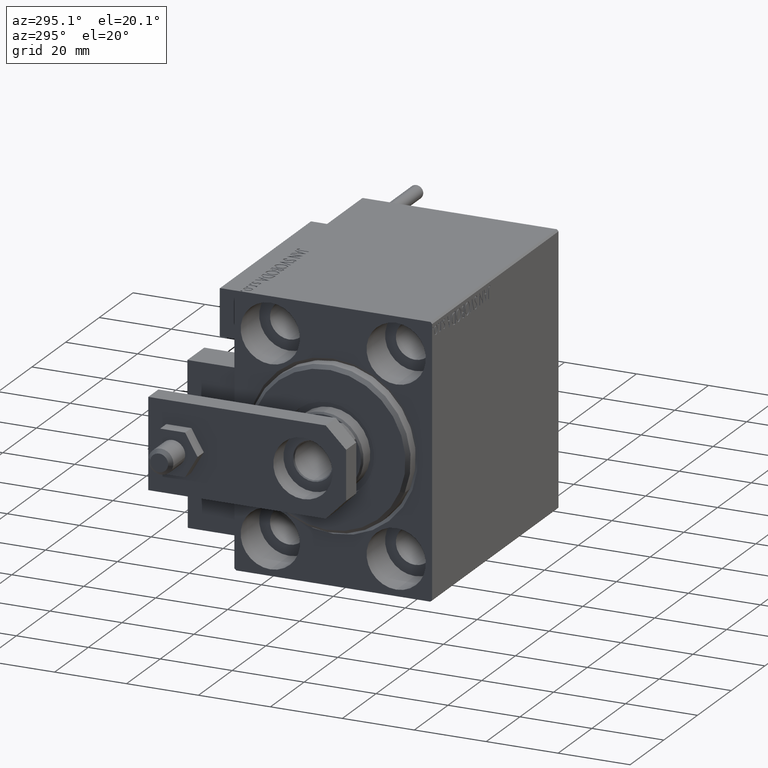
[diagram: clean part render]
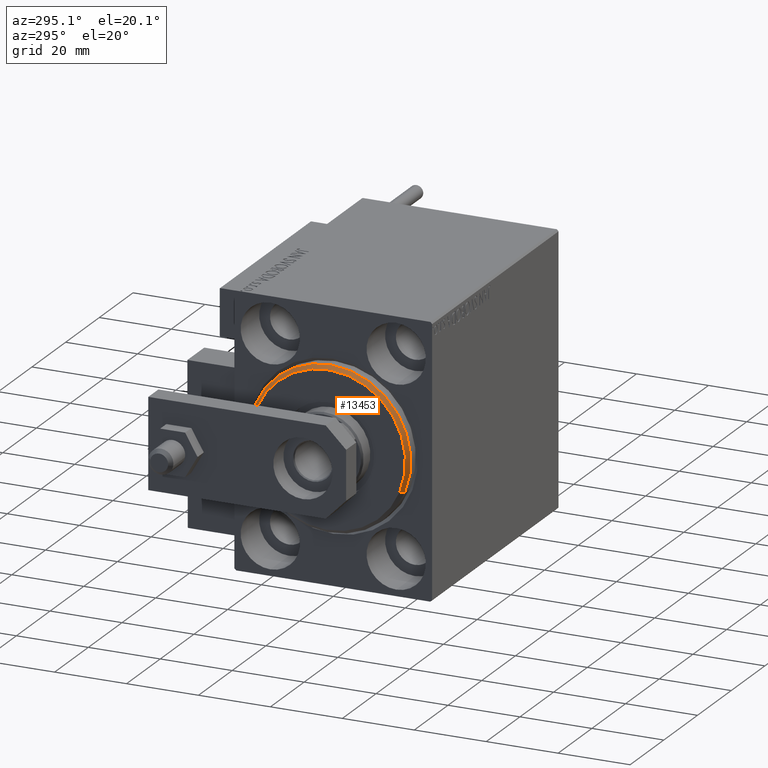
[diagram: same view with one face highlighted and labeled with its STEP entity id]
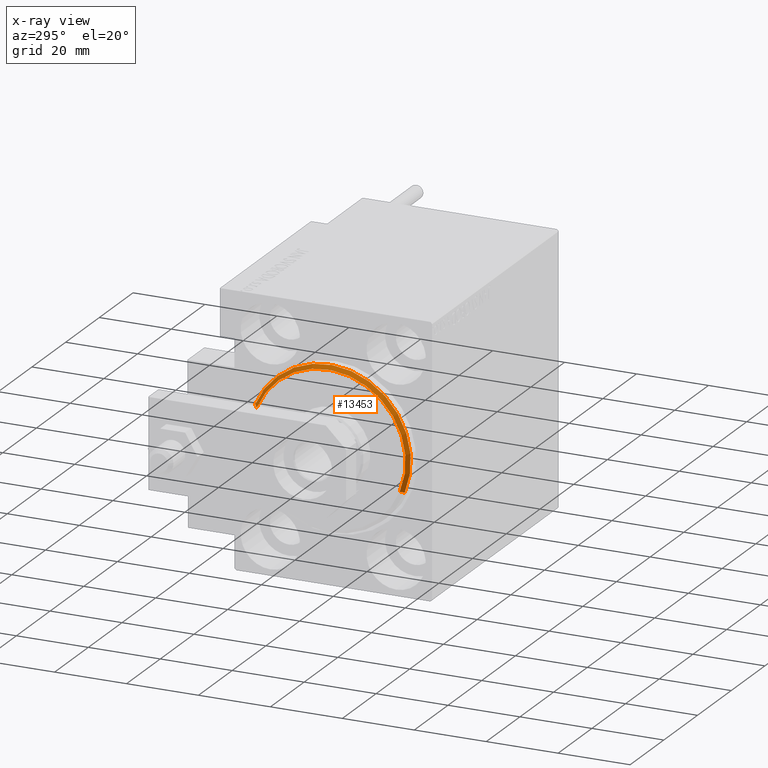
[diagram: x-ray of the same camera — body ghosted, the highlighted face saturated]
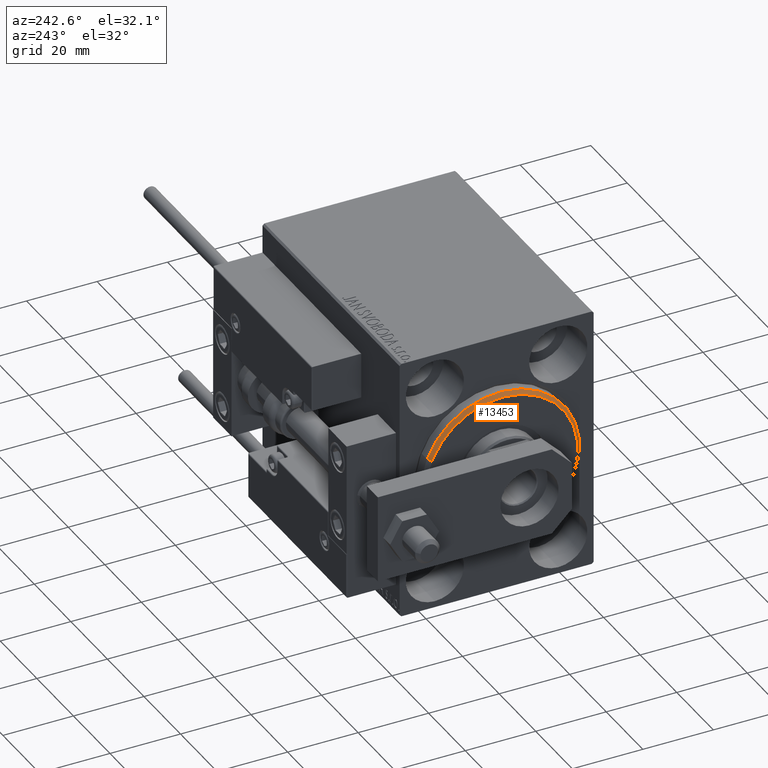
[diagram: same view with one face highlighted and labeled with its STEP entity id]
A machine part, auxiliary view. The second image highlights one B-rep face of the part: STEP entity #13453.
The next image is the same camera in x-ray: the body ghosted, the highlighted face saturated — about 0% of this face is hidden behind the body in this view.
A second angle (auxiliary view) of the same face is appended — the face is thin or edge-on in the first view.
In plain terms, the highlighted conical surface has half-angle 45 deg.
Its self-contained STEP definition (entity closure, byte-faithful):
#3194 = CARTESIAN_POINT ( 'NONE',  ( 3.000000000000000000, 2.694222958124177598E-15, -21.50000000000000355 ) ) ;
#4805 = DIRECTION ( 'NONE',  ( 1.000000000000000000, -0.000000000000000000, 0.000000000000000000 ) ) ;
#4994 = VERTEX_POINT ( 'NONE', #23076 ) ;
#7599 = EDGE_LOOP ( 'NONE', ( #13082, #9164, #28721, #24479 ) ) ;
#9164 = ORIENTED_EDGE ( 'NONE', *, *, #31302, .F. ) ;
#9896 = CARTESIAN_POINT ( 'NONE',  ( 1.999999999999999112, 2.755455298081545172E-15, -22.50000000000000355 ) ) ;
#11034 = CARTESIAN_POINT ( 'NONE',  ( 3.000000000000000000, 2.632990618166810024E-15, -21.50000000000000355 ) ) ;
#12801 = DIRECTION ( 'NONE',  ( -1.000000000000000000, 0.000000000000000000, 0.000000000000000000 ) ) ;
#13082 = ORIENTED_EDGE ( 'NONE', *, *, #45075, .F. ) ;
#13238 = VECTOR ( 'NONE', #25916, 1000.000000000000000 ) ;
#13453 = ADVANCED_FACE ( 'NONE', ( #24643 ), #20521, .T. ) ;
#16590 = DIRECTION ( 'NONE',  ( 0.000000000000000000, 0.000000000000000000, 1.000000000000000000 ) ) ;
#18528 = LINE ( 'NONE', #45562, #36337 ) ;
#18543 = AXIS2_PLACEMENT_3D ( 'NONE', #23727, #4805, #23476 ) ;
#20521 = CONICAL_SURFACE ( 'NONE', #26968, 21.50000000000000355, 0.7853981633974466137 ) ;
#23076 = CARTESIAN_POINT ( 'NONE',  ( 1.999999999999999112, 0.000000000000000000, 22.50000000000000355 ) ) ;
#23476 = DIRECTION ( 'NONE',  ( 0.000000000000000000, 0.000000000000000000, -1.000000000000000000 ) ) ;
#23727 = CARTESIAN_POINT ( 'NONE',  ( 3.000000000000000000, 0.000000000000000000, 0.000000000000000000 ) ) ;
#24479 = ORIENTED_EDGE ( 'NONE', *, *, #43567, .F. ) ;
#24643 = FACE_OUTER_BOUND ( 'NONE', #7599, .T. ) ;
#25916 = DIRECTION ( 'NONE',  ( -0.7071067811865487940, 8.659560562354919300E-17, -0.7071067811865463515 ) ) ;
#26528 = CARTESIAN_POINT ( 'NONE',  ( 3.000000000000000000, 0.000000000000000000, 21.50000000000000355 ) ) ;
#26968 = AXIS2_PLACEMENT_3D ( 'NONE', #44604, #12801, #16590 ) ;
#28721 = ORIENTED_EDGE ( 'NONE', *, *, #32939, .T. ) ;
#29308 = CIRCLE ( 'NONE', #37385, 22.50000000000000355 ) ;
#31302 = EDGE_CURVE ( 'NONE', #47841, #39685, #42721, .T. ) ;
#32243 = VERTEX_POINT ( 'NONE', #9896 ) ;
#32939 = EDGE_CURVE ( 'NONE', #47841, #4994, #18528, .T. ) ;
#36337 = VECTOR ( 'NONE', #46051, 1000.000000000000000 ) ;
#37385 = AXIS2_PLACEMENT_3D ( 'NONE', #41682, #38388, #45483 ) ;
#38388 = DIRECTION ( 'NONE',  ( -1.000000000000000000, 0.000000000000000000, 0.000000000000000000 ) ) ;
#39685 = VERTEX_POINT ( 'NONE', #3194 ) ;
#41682 = CARTESIAN_POINT ( 'NONE',  ( 1.999999999999999112, 0.000000000000000000, 0.000000000000000000 ) ) ;
#42721 = CIRCLE ( 'NONE', #18543, 21.50000000000000355 ) ;
#43567 = EDGE_CURVE ( 'NONE', #32243, #4994, #29308, .T. ) ;
#44604 = CARTESIAN_POINT ( 'NONE',  ( 3.000000000000000000, 0.000000000000000000, 0.000000000000000000 ) ) ;
#45075 = EDGE_CURVE ( 'NONE', #39685, #32243, #45628, .T. ) ;
#45483 = DIRECTION ( 'NONE',  ( 0.000000000000000000, 0.000000000000000000, -1.000000000000000000 ) ) ;
#45562 = CARTESIAN_POINT ( 'NONE',  ( 3.000000000000000000, 0.000000000000000000, 21.50000000000000355 ) ) ;
#45628 = LINE ( 'NONE', #11034, #13238 ) ;
#46051 = DIRECTION ( 'NONE',  ( -0.7071067811865487940, 0.000000000000000000, 0.7071067811865463515 ) ) ;
#47841 = VERTEX_POINT ( 'NONE', #26528 ) ;